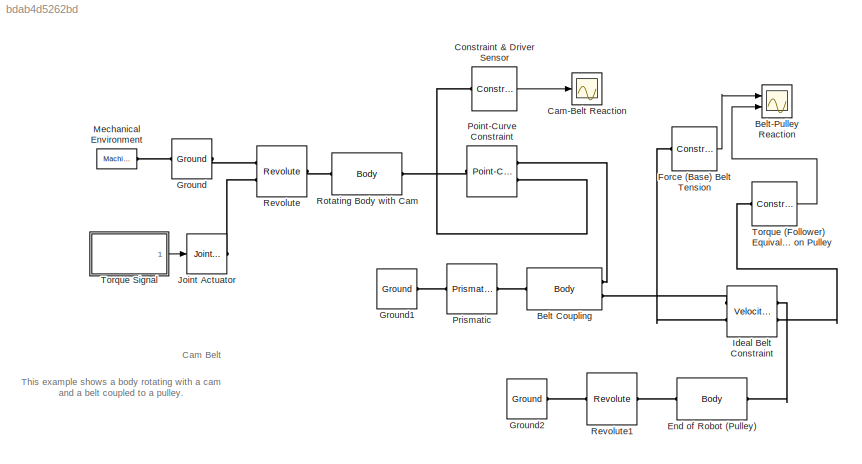
MODEL slx_bdab4d5262bd
KIND model
CONFIG AbsTol = auto
CONFIG EnableMultiTasking = on
CONFIG FixedStep = 0.01
CONFIG MaxStep = auto
CONFIG MinStep = auto
CONFIG RelTol = 1e-3
CONFIG SampleTimeConstraint = Unconstrained
CONFIG Solver = ode5
CONFIG SolverName = ode5
CONFIG StartTime = 0.0
CONFIG StopTime = 5
BLOCK [Reference] Belt Coupling  REF=mblibv1/Bodies/Body
  Ports = [0, 0, 0, 0, 0, 1, 2]
  SourceBlock = mblibv1/Bodies/Body
  SourceProductBaseCode = MS
  SourceProductName = Simscape Multibody
  SourceType = Body
BLOCK [Scope] Belt-Pulley Reaction
  Floating = off
  NumInputPorts = 2
  Ports = [2]
  ScopeSpecificationString = Simulink.scopes.TimeScopeBlockCfg('CurrentConfiguration', extmgr.ConfigurationSet(extmgr.Configuration('Core','General UI',true,'MessageLogAutoOpenMode','for warn/fail messages','ShowCloseAll',true,'ShowBringAllForward',true),extmgr.Configuration('Core','Source UI',true,'PlaybackToolbar',true),extmgr.Configuration('Sources','WiredSimulink',true,'PointsPerSignal',50000,'DataLoggingVariableName','Sc...<+2624ch>
BLOCK [Scope] Cam-Belt Reaction
  Floating = off
  NumInputPorts = 1
  Ports = [1]
  ScopeSpecificationString = Simulink.scopes.TimeScopeBlockCfg('CurrentConfiguration', extmgr.ConfigurationSet(extmgr.Configuration('Core','General UI',true,'MessageLogAutoOpenMode','for warn/fail messages','ShowCloseAll',true,'ShowBringAllForward',true),extmgr.Configuration('Core','Source UI',true,'PlaybackToolbar',true),extmgr.Configuration('Sources','WiredSimulink',true,'PointsPerSignal',50000,'DataLoggingDecimation','1','...<+1910ch>
BLOCK [Reference] Constraint & Driver Sensor  REF=mblibv1/Sensors & 
Actuators/Constraint & Driver 
Sensor
  Ports = [0, 1, 0, 0, 0, 1]
  SourceBlock = mblibv1/Sensors & \nActuators/Constraint & Driver \nSensor
  SourceProductBaseCode = MS
  SourceProductName = Simscape Multibody
  SourceType = Constraint & Driver Sensor
BLOCK [Reference] End of Robot (Pulley)  REF=mblibv1/Bodies/Body
  Ports = [0, 0, 0, 0, 0, 1, 1]
  SourceBlock = mblibv1/Bodies/Body
  SourceProductBaseCode = MS
  SourceProductName = Simscape Multibody
  SourceType = Body
BLOCK [Reference] Force (Base) Belt Tension  REF=mblibv1/Sensors & 
Actuators/Constraint & Driver 
Sensor
  Ports = [0, 1, 0, 0, 0, 1]
  SourceBlock = mblibv1/Sensors & \nActuators/Constraint & Driver \nSensor
  SourceProductBaseCode = MS
  SourceProductName = Simscape Multibody
  SourceType = Constraint & Driver Sensor
BLOCK [Reference] Ground  REF=mblibv1/Bodies/Ground
  Ports = [0, 0, 0, 0, 0, 1, 1]
  SourceBlock = mblibv1/Bodies/Ground
  SourceProductBaseCode = MS
  SourceProductName = Simscape Multibody
  SourceType = Ground
  UserDataPersistent = on
BLOCK [Reference] Ground1  REF=mblibv1/Bodies/Ground
  Ports = [0, 0, 0, 0, 0, 0, 1]
  SourceBlock = mblibv1/Bodies/Ground
  SourceProductBaseCode = MS
  SourceProductName = Simscape Multibody
  SourceType = Ground
  UserDataPersistent = on
BLOCK [Reference] Ground2  REF=mblibv1/Bodies/Ground
  Ports = [0, 0, 0, 0, 0, 0, 1]
  SourceBlock = mblibv1/Bodies/Ground
  SourceProductBaseCode = MS
  SourceProductName = Simscape Multibody
  SourceType = Ground
  UserDataPersistent = on
BLOCK [Reference] Ideal Belt Constraint  REF=mblibv1/Constraints & 
Drivers/Velocity Driver
  Ports = [0, 0, 0, 0, 0, 2, 2]
  SourceBlock = mblibv1/Constraints & \nDrivers/Velocity Driver
  SourceProductBaseCode = MS
  SourceProductName = Simscape Multibody
  SourceType = Velocity Driver
BLOCK [Reference] Joint Actuator  REF=mblibv1/Sensors & 
Actuators/Joint Actuator
  Ports = [1, 0, 0, 0, 0, 0, 1]
  SourceBlock = mblibv1/Sensors & \nActuators/Joint Actuator
  SourceProductBaseCode = MS
  SourceProductName = Simscape Multibody
  SourceType = Joint Actuator
BLOCK [Reference] Mechanical Environment  REF=mblibv1/Bodies/Machine
Environment
  Ports = [0, 0, 0, 0, 0, 0, 1]
  SourceBlock = mblibv1/Bodies/Machine\nEnvironment
  SourceProductBaseCode = MS
  SourceProductName = Simscape Multibody
  SourceType = Machine Environment
  Tag = Factory ground
BLOCK [Reference] Point-Curve Constraint  REF=mblibv1/Constraints & 
Drivers/Point-Curve Constraint
  Ports = [0, 0, 0, 0, 0, 2, 1]
  SourceBlock = mblibv1/Constraints & \nDrivers/Point-Curve Constraint
  SourceProductBaseCode = MS
  SourceProductName = Simscape Multibody
  SourceType = Point-Curve Constraint
BLOCK [Reference] Prismatic  REF=mblibv1/Joints/Prismatic
  Ports = [0, 0, 0, 0, 0, 1, 1]
  SourceBlock = mblibv1/Joints/Prismatic
  SourceProductBaseCode = MS
  SourceProductName = Simscape Multibody
  SourceType = Prismatic
BLOCK [Reference] Revolute  REF=mblibv1/Joints/Revolute
  Ports = [0, 0, 0, 0, 0, 2, 1]
  SourceBlock = mblibv1/Joints/Revolute
  SourceProductBaseCode = MS
  SourceProductName = Simscape Multibody
  SourceType = Revolute
BLOCK [Reference] Revolute1  REF=mblibv1/Joints/Revolute
  Ports = [0, 0, 0, 0, 0, 1, 1]
  SourceBlock = mblibv1/Joints/Revolute
  SourceProductBaseCode = MS
  SourceProductName = Simscape Multibody
  SourceType = Revolute
BLOCK [Reference] Rotating Body with Cam  REF=mblibv1/Bodies/Body
  Ports = [0, 0, 0, 0, 0, 1, 1]
  SourceBlock = mblibv1/Bodies/Body
  SourceProductBaseCode = MS
  SourceProductName = Simscape Multibody
  SourceType = Body
BLOCK [Reference] Torque (Follower) Equivalent Torque on Pulley  REF=mblibv1/Sensors & 
Actuators/Constraint & Driver 
Sensor
  Ports = [0, 1, 0, 0, 0, 1]
  SourceBlock = mblibv1/Sensors & \nActuators/Constraint & Driver \nSensor
  SourceProductBaseCode = MS
  SourceProductName = Simscape Multibody
  SourceType = Constraint & Driver Sensor
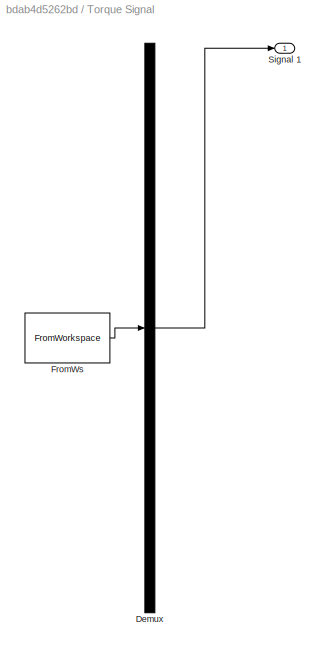
BLOCK [SubSystem] Torque Signal
  ClipboardFcn = sigbuilder_block('clipboard');
  CloseFcn = sigbuilder_block('close');
  ContinueFcn = sigbuilder_block('continue')
  CopyFcn = sigbuilder_block('copy');
  DeleteFcn = sigbuilder_block('delete');
  LoadFcn = sigbuilder_block('load');
  MaskHideContents = on
  ModelCloseFcn = sigbuilder_block('modelClose');
  NameChangeFcn = sigbuilder_block('namechange');
  OpenFcn = sigbuilder_block('open',[57 48.75 519.75 399.75 ]);
  PauseFcn = sigbuilder_block('pause')
  Ports = [0, 1]
  PreSaveFcn = sigbuilder_block('preSave');
  RequestExecContextInheritance = off
  StartFcn = sigbuilder_block('start');
  StopFcn = sigbuilder_block('stop');
  Tag = STV Subsys
BLOCK [Demux] Torque Signal/Demux
  Outputs = 1
  Ports = [1, 1]
  Tag = STV Demux
BLOCK [FromWorkspace] Torque Signal/FromWs
  SampleTime = 0
  Tag = STV FromWs
  VariableName = tuvar
BLOCK [Outport] Torque Signal/Signal 1
  IconDisplay = Port number
  Tag = STV Outport
ANNOTATION (root): Cam Belt
ANNOTATION (root): This example shows a body rotating with a cam and a belt coupled to a pulley.
LINE Constraint & Driver Sensor:1 -> Cam-Belt Reaction:1
LINE Force (Base) Belt Tension:1 -> Belt-Pulley Reaction:1
LINE Torque (Follower) Equivalent Torque on Pulley:1 -> Belt-Pulley Reaction:2
LINE Torque Signal/Demux:1 -> Torque Signal/Signal 1:1
LINE Torque Signal/FromWs:1 -> Torque Signal/Demux:1
LINE Torque Signal:1 -> Joint Actuator:1
PLINE Belt Coupling:LConn1 -- Prismatic:RConn1
PLINE Belt Coupling:RConn1 -- Point-Curve Constraint:LConn1
PLINE Belt Coupling:RConn2 -- Ideal Belt Constraint:LConn1
PLINE Constraint & Driver Sensor:LConn1 -- Point-Curve Constraint:LConn2
PLINE End of Robot (Pulley):LConn1 -- Revolute1:RConn1
PLINE End of Robot (Pulley):RConn1 -- Ideal Belt Constraint:RConn1
PLINE Force (Base) Belt Tension:LConn1 -- Ideal Belt Constraint:LConn2
PLINE Ground1:RConn1 -- Prismatic:LConn1
PLINE Ground2:RConn1 -- Revolute1:LConn1
PLINE Ground:LConn1 -- Mechanical Environment:RConn1
PLINE Ground:RConn1 -- Revolute:LConn1
PLINE Ideal Belt Constraint:RConn2 -- Torque (Follower) Equivalent Torque on Pulley:LConn1
PLINE Joint Actuator:RConn1 -- Revolute:LConn2
PLINE Point-Curve Constraint:RConn1 -- Rotating Body with Cam:RConn1
PLINE Revolute:RConn1 -- Rotating Body with Cam:LConn1
